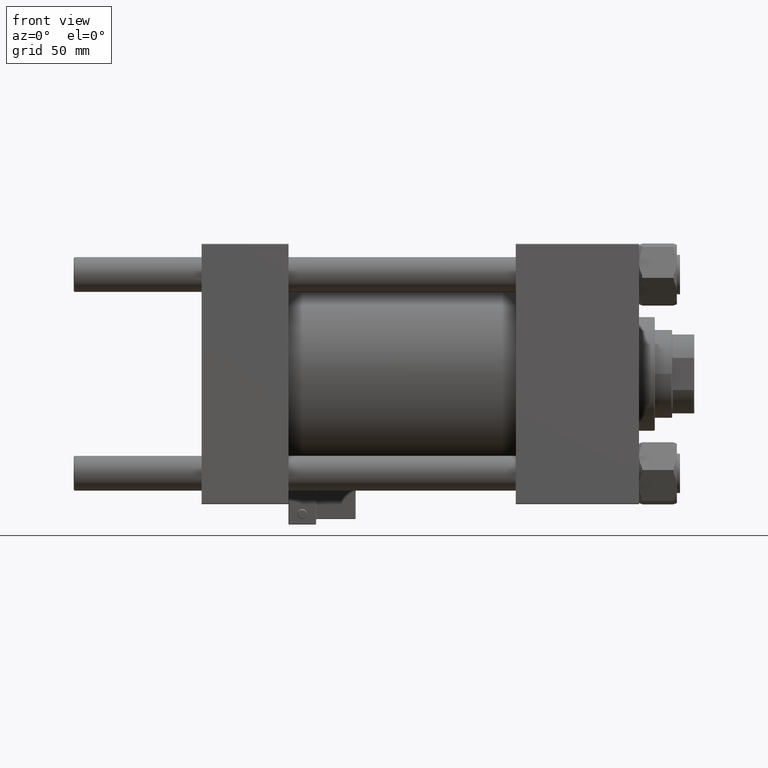
[diagram: clean part render]
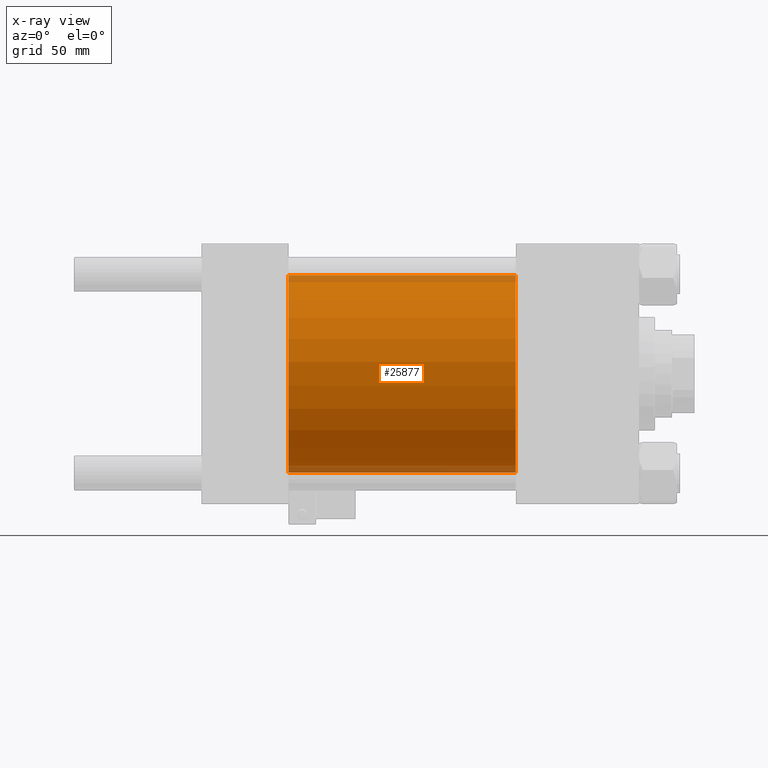
[diagram: x-ray — body ghosted, one internal face saturated and labeled with its STEP entity id]
A machine part, front view, then the same camera in x-ray: the body is ghosted and one INTERNAL B-rep face — a face not visible from any outside direction — is saturated and labeled: STEP entity #25877.
In plain terms, the highlighted cylindrical surface (partial cylindrical patch) has radius 62.5 mm, axis along (-1, -0, -0).
Its self-contained STEP definition (entity closure, byte-faithful):
#82 = ORIENTED_EDGE ( 'NONE', *, *, #22309, .F. ) ;
#771 = AXIS2_PLACEMENT_3D ( 'NONE', #6550, #3079, #23050 ) ;
#2397 = LINE ( 'NONE', #3191, #51348 ) ;
#3079 = DIRECTION ( 'NONE',  ( 1.000000000000000000, 0.000000000000000000, 0.000000000000000000 ) ) ;
#3191 = CARTESIAN_POINT ( 'NONE',  ( 198.9999999999999716, 7.654042494670957804E-15, -62.50000000000000000 ) ) ;
#5474 = DIRECTION ( 'NONE',  ( -1.000000000000000000, -0.000000000000000000, -0.000000000000000000 ) ) ;
#6019 = VERTEX_POINT ( 'NONE', #7034 ) ;
#6460 = CARTESIAN_POINT ( 'NONE',  ( 55.00000000000000000, 0.000000000000000000, 62.50000000000000000 ) ) ;
#6550 = CARTESIAN_POINT ( 'NONE',  ( 55.00000000000000000, 0.000000000000000000, 0.000000000000000000 ) ) ;
#7034 = CARTESIAN_POINT ( 'NONE',  ( 55.00000000000000000, 7.654042494670957804E-15, -62.50000000000000000 ) ) ;
#7770 = ORIENTED_EDGE ( 'NONE', *, *, #18204, .T. ) ;
#9488 = CARTESIAN_POINT ( 'NONE',  ( 198.9999999999999716, 7.654042494670957804E-15, -62.50000000000000000 ) ) ;
#12857 = EDGE_CURVE ( 'NONE', #47665, #6019, #38113, .T. ) ;
#13149 = ORIENTED_EDGE ( 'NONE', *, *, #46131, .T. ) ;
#14379 = DIRECTION ( 'NONE',  ( 0.000000000000000000, 0.000000000000000000, 1.000000000000000000 ) ) ;
#14450 = EDGE_LOOP ( 'NONE', ( #7770, #13149, #50229, #82 ) ) ;
#15433 = FACE_OUTER_BOUND ( 'NONE', #14450, .T. ) ;
#18047 = CARTESIAN_POINT ( 'NONE',  ( 198.9999999999999716, 0.000000000000000000, 0.000000000000000000 ) ) ;
#18204 = EDGE_CURVE ( 'NONE', #34360, #26921, #31398, .T. ) ;
#18636 = AXIS2_PLACEMENT_3D ( 'NONE', #18047, #44764, #49289 ) ;
#18645 = DIRECTION ( 'NONE',  ( -1.000000000000000000, -0.000000000000000000, -0.000000000000000000 ) ) ;
#21075 = VECTOR ( 'NONE', #5474, 1000.000000000000000 ) ;
#22309 = EDGE_CURVE ( 'NONE', #34360, #47665, #38436, .T. ) ;
#23050 = DIRECTION ( 'NONE',  ( 0.000000000000000000, 0.000000000000000000, -1.000000000000000000 ) ) ;
#25877 = ADVANCED_FACE ( 'NONE', ( #15433 ), #47344, .F. ) ;
#26921 = VERTEX_POINT ( 'NONE', #9488 ) ;
#27137 = DIRECTION ( 'NONE',  ( -1.000000000000000000, -0.000000000000000000, -0.000000000000000000 ) ) ;
#29960 = CARTESIAN_POINT ( 'NONE',  ( 198.9999999999999716, 0.000000000000000000, 62.50000000000000000 ) ) ;
#31398 = CIRCLE ( 'NONE', #18636, 62.50000000000000000 ) ;
#33957 = AXIS2_PLACEMENT_3D ( 'NONE', #39637, #27137, #14379 ) ;
#34360 = VERTEX_POINT ( 'NONE', #29960 ) ;
#38113 = CIRCLE ( 'NONE', #771, 62.50000000000000000 ) ;
#38436 = LINE ( 'NONE', #42706, #21075 ) ;
#39637 = CARTESIAN_POINT ( 'NONE',  ( 198.9999999999999716, 0.000000000000000000, 0.000000000000000000 ) ) ;
#42706 = CARTESIAN_POINT ( 'NONE',  ( 198.9999999999999716, 0.000000000000000000, 62.50000000000000000 ) ) ;
#44764 = DIRECTION ( 'NONE',  ( 1.000000000000000000, 0.000000000000000000, 0.000000000000000000 ) ) ;
#46131 = EDGE_CURVE ( 'NONE', #26921, #6019, #2397, .T. ) ;
#47344 = CYLINDRICAL_SURFACE ( 'NONE', #33957, 62.50000000000000000 ) ;
#47665 = VERTEX_POINT ( 'NONE', #6460 ) ;
#49289 = DIRECTION ( 'NONE',  ( 0.000000000000000000, 0.000000000000000000, -1.000000000000000000 ) ) ;
#50229 = ORIENTED_EDGE ( 'NONE', *, *, #12857, .F. ) ;
#51348 = VECTOR ( 'NONE', #18645, 1000.000000000000000 ) ;